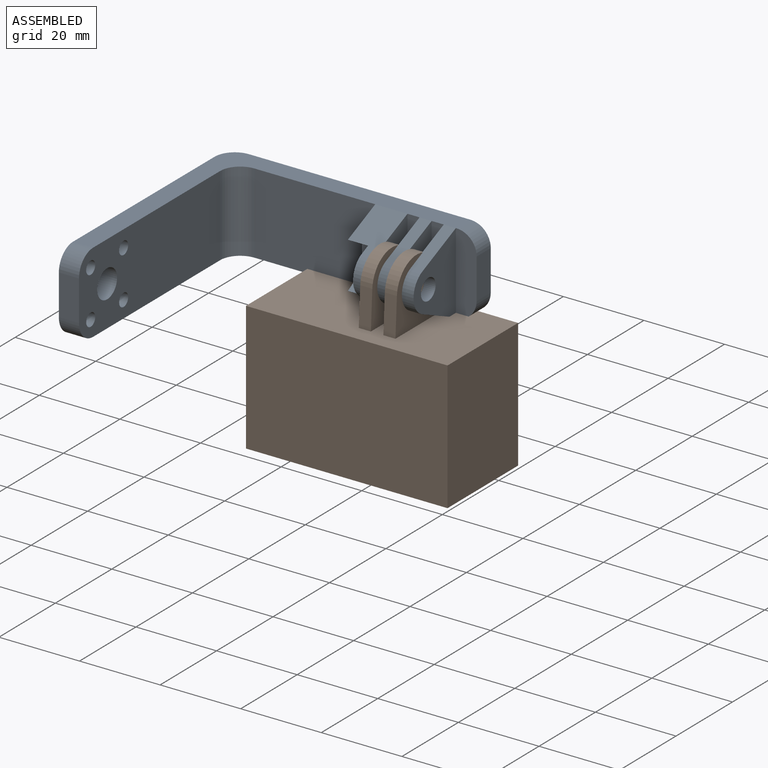
[diagram: assembled view]
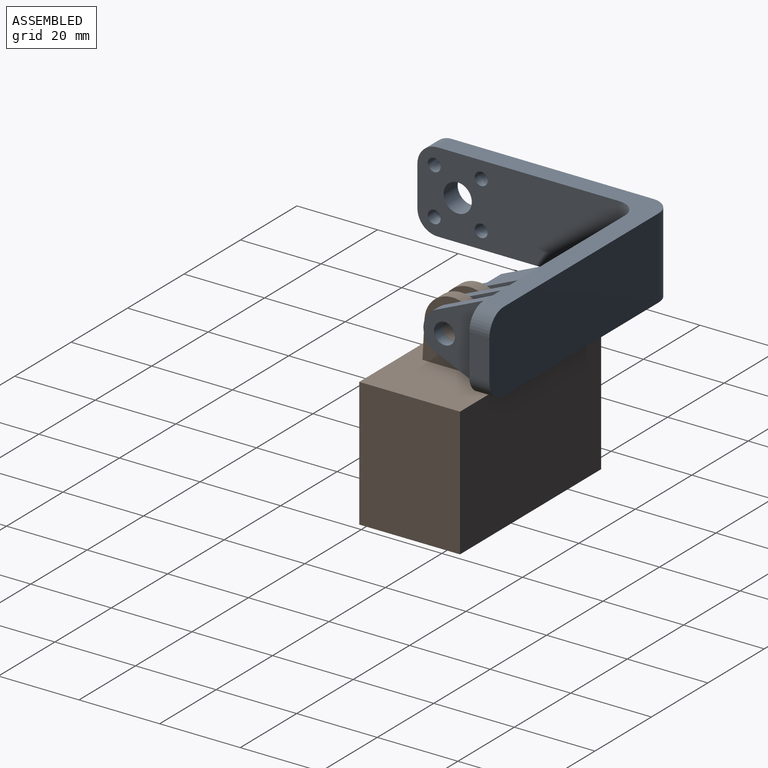
[diagram: assembled view, second angle]
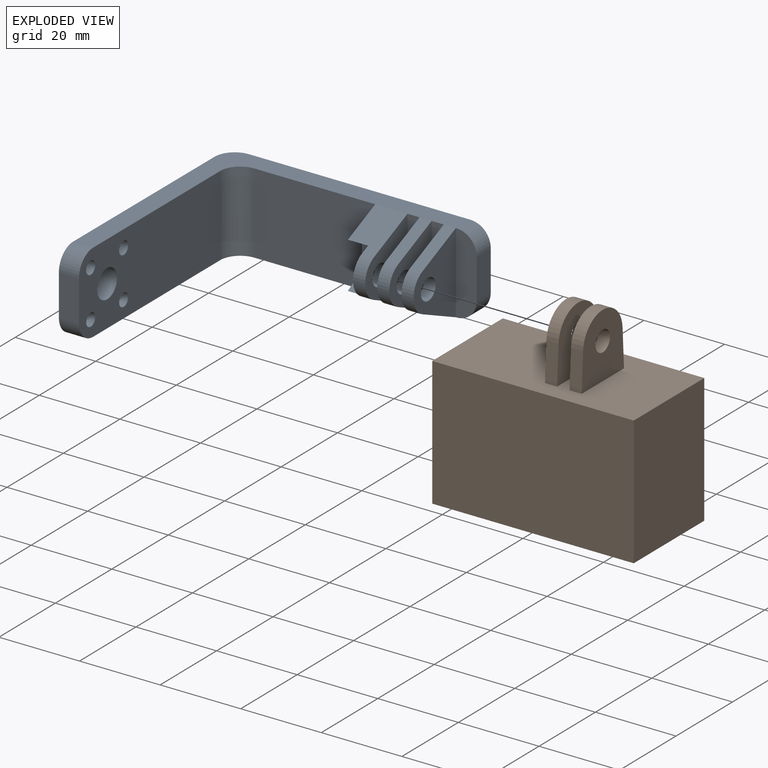
[diagram: exploded view]
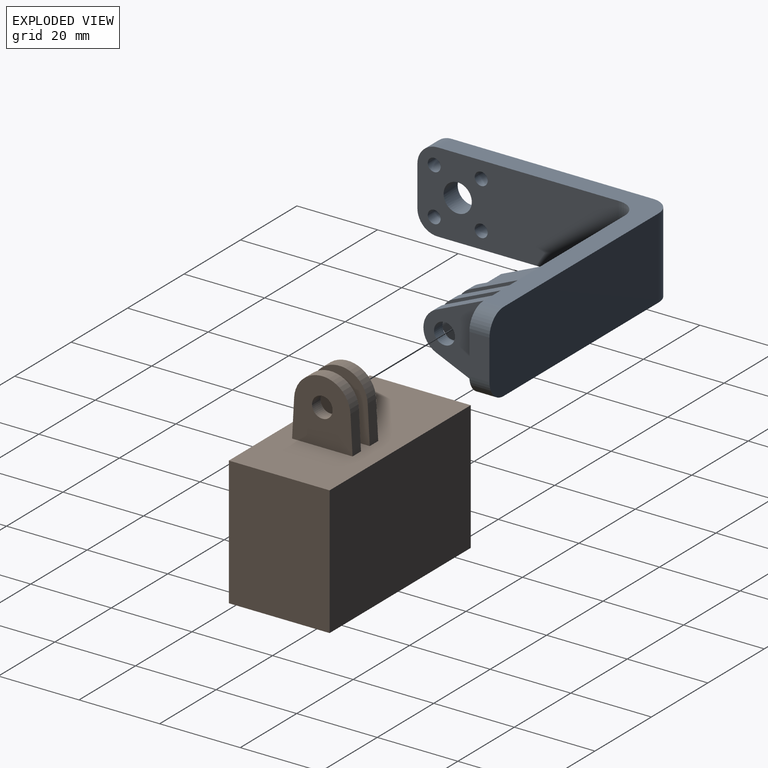
[diagram: exploded view, second angle]
ASSEMBLY  parts=2 mates=2
PART A: 44 faces, bbox 65.2x60x20 mm
  f0: plane 30x20mm, normal (0,-1,0), area 600mm2, adj f7,f8,f38,f43
  f1: plane 11.49x10.24mm, normal (-1,0,0), area 65.9mm2, adj f21,f22,f27,f28,f40,f41,f42
  f2: plane 20x15mm, normal (1,0,0), area 176mm2, adj f10,f21,f22,f27,f28
  f3: plane 20x15mm, normal (-1,0,0), area 176mm2, adj f10,f19,f20,f25,f26
  f4: plane 20x15mm, normal (1,0,0), area 176mm2, adj f9,f19,f20,f25,f26
  f5: plane 20x15mm, normal (-1,0,0), area 176mm2, adj f9,f17,f18,f23,f24
  f6: plane 20x15mm, normal (1,0,0), area 176mm2, adj f14,f17,f18,f23,f24
  f7: plane 60.14x55mm, normal (0,0,-1), area 546.1mm2, adj f0,f9,f10,f11,f13,f14,f16,f24
  f8: plane 60.14x55mm, normal (0,0,1), area 546.1mm2, adj f0,f9,f10,f11,f13,f14,f16,f18
  f9: plane 20x3mm, normal (0,-1,0), area 60mm2, adj f4,f5,f7,f8
  f10: plane 20x3mm, normal (0,-1,0), area 60mm2, adj f2,f3,f7,f8
  f11: plane 55.02x20.01mm, normal (-1,0,0), area 1018.9mm2, adj f7,f8,f12,f29,f30,f31,f32,f33
  f12: plane 10x5mm, normal (0,-1,0), area 50mm2, adj f11,f13,f35,f37
  f13: plane 50x20mm, normal (1,0,0), area 918.6mm2, adj f7,f8,f12,f29,f30,f31,f32,f33
  f14: plane 20x5.16mm, normal (0,-1,0), area 92.4mm2, adj f6,f7,f8,f15,f34,f36
  f15: plane 10x5mm, normal (1,0,0), area 50mm2, adj f14,f16,f34,f36
  f16: plane 60.01x20mm, normal (0,1,0), area 1189.5mm2, adj f7,f8,f15,f34,f36,f39
  f17: cylinder r=5.24mm len=9.6mm, axis (1,0,0), area 36.4mm2, adj f5,f6,f18,f24
  f18: plane 11.86x5.2mm, normal (0,-0.4,0.92), area 38.9mm2, adj f5,f6,f8,f17
  f19: cylinder r=5.24mm len=9.6mm, axis (1,0,0), area 36.4mm2, adj f3,f4,f20,f25
  f20: plane 11.86x5.2mm, normal (0,-0.4,0.92), area 38.9mm2, adj f3,f4,f8,f19
  f21: plane 11.86x8mm, normal (0,-0.4,0.92), area 91.9mm2, adj f1,f2,f8,f22,f40,f43
  f22: cylinder r=5.24mm len=9.6mm, axis (1,0,0), area 36.4mm2, adj f1,f2,f21,f27
  f23: cylinder r=2.6mm len=5.2mm, axis (1,0,0), area 49mm2, adj f5,f6
  f24: plane 11.86x5.2mm, normal (0,-0.4,-0.92), area 38.9mm2, adj f5,f6,f7,f17
  f25: plane 11.86x5.2mm, normal (0,-0.4,-0.92), area 38.9mm2, adj f3,f4,f7,f19
  f26: cylinder r=2.6mm len=5.2mm, axis (1,0,0), area 49mm2, adj f3,f4
  f27: plane 11.86x8mm, normal (0,-0.4,-0.92), area 91.9mm2, adj f1,f2,f7,f22,f41,f43
  f28: cylinder r=2.6mm len=5.2mm, axis (1,0,0), area 49mm2, adj f1,f2
  f29: cylinder r=1.6mm len=4.99mm, axis (1,0,0), area 50.1mm2, adj f11,f13
  f30: cylinder r=3.5mm len=7mm, axis (1,0,0), area 109.4mm2, adj f11,f13
  f31: cylinder r=1.6mm len=4.96mm, axis (1,0,0), area 49.8mm2, adj f11,f13
  f32: cylinder r=1.6mm len=4.96mm, axis (1,0,0), area 49.8mm2, adj f11,f13
  f33: cylinder r=1.6mm len=4.99mm, axis (1,0,0), area 50.1mm2, adj f11,f13
  f34: cylinder r=5mm len=5mm, axis (0,1,0), area 39.3mm2, adj f7,f14,f15,f16
  f35: cylinder r=5mm len=5mm, axis (1,0,0), area 39.2mm2, adj f7,f11,f12,f13
  f36: cylinder r=5mm len=5mm, axis (0,-1,0), area 39.3mm2, adj f8,f14,f15,f16
  f37: cylinder r=5mm len=5mm, axis (-1,0,0), area 39.2mm2, adj f8,f11,f12,f13
  f38: cylinder r=5mm len=20mm, axis (0,0,1), area 157.1mm2, adj f0,f7,f8,f13
  f39: cylinder r=5mm len=20mm, axis (0,0,-1), area 156.8mm2, adj f7,f8,f11,f16
  f40: plane 5x4.95mm, normal (0,-0.5,-0.87), area 28.6mm2, adj f1,f21,f42,f43
  f41: plane 5x4.95mm, normal (0,-0.5,0.87), area 28.6mm2, adj f1,f27,f42,f43
  f42: plane 5.77x5mm, normal (0,-1,0), area 28.9mm2, adj f1,f40,f41,f43
  f43: plane 20x9.71mm, normal (-1,0,0), area 110.1mm2, adj f0,f21,f27,f40,f41,f42
PART B: 18 faces, bbox 50x25x48 mm
  f0: plane 16x15mm, normal (-1,0,0), area 187.1mm2, adj f4,f12,f13,f16,f17
  f1: plane 16x15mm, normal (1,0,0), area 187.1mm2, adj f4,f12,f13,f16,f17
  f2: plane 16x15mm, normal (1,0,0), area 187.1mm2, adj f4,f10,f11,f14,f15
  f3: plane 16x15mm, normal (-1,0,0), area 187.1mm2, adj f4,f10,f11,f14,f15
  f4: plane 50x25mm, normal (0,0,1), area 1160mm2, adj f0,f1,f2,f3,f5,f7,f8,f9
  f5: plane 32x25mm, normal (-1,0,0), area 800mm2, adj f4,f6,f8,f9
  f6: plane 50x25mm, normal (0,0,-1), area 1250mm2, adj f5,f7,f8,f9
  f7: plane 32x25mm, normal (1,0,0), area 800mm2, adj f4,f6,f8,f9
  f8: plane 50x32mm, normal (0,-1,0), area 1600mm2, adj f4,f5,f6,f7
  f9: plane 50x32mm, normal (0,1,0), area 1600mm2, adj f4,f5,f6,f7
  f10: plane 9.38x3mm, normal (0,-1,0.05), area 28.2mm2, adj f2,f3,f4,f11
  f11: cylinder r=7mm len=13.98mm, axis (1,0,0), area 63.7mm2, adj f2,f3,f10,f14
  f12: plane 9.38x3mm, normal (0,-1,0.05), area 28.2mm2, adj f0,f1,f4,f13
  f13: cylinder r=7mm len=13.98mm, axis (1,0,0), area 63.7mm2, adj f0,f1,f12,f16
  f14: plane 9.38x3mm, normal (0,1,0.05), area 28.2mm2, adj f2,f3,f4,f11
  f15: cylinder r=2.55mm len=5.1mm, axis (1,0,0), area 48.1mm2, adj f2,f3
  f16: plane 9.38x3mm, normal (0,1,0.05), area 28.2mm2, adj f0,f1,f4,f13
  f17: cylinder r=2.55mm len=5.1mm, axis (1,0,0), area 48.1mm2, adj f0,f1
PLACE A t=(-22.18,16.76,-11.32)mm
PLACE B t=(-9.65,25.28,-16.09)mm
MATE planar A.f2 <-> B.f0  axis (1,0,0) through (-4.04,16.07,6.08)mm
MATE cylindrical A.f17 <-> B.f11  axis (1,0,0) through (7.96,12.24,-1.32)mm
